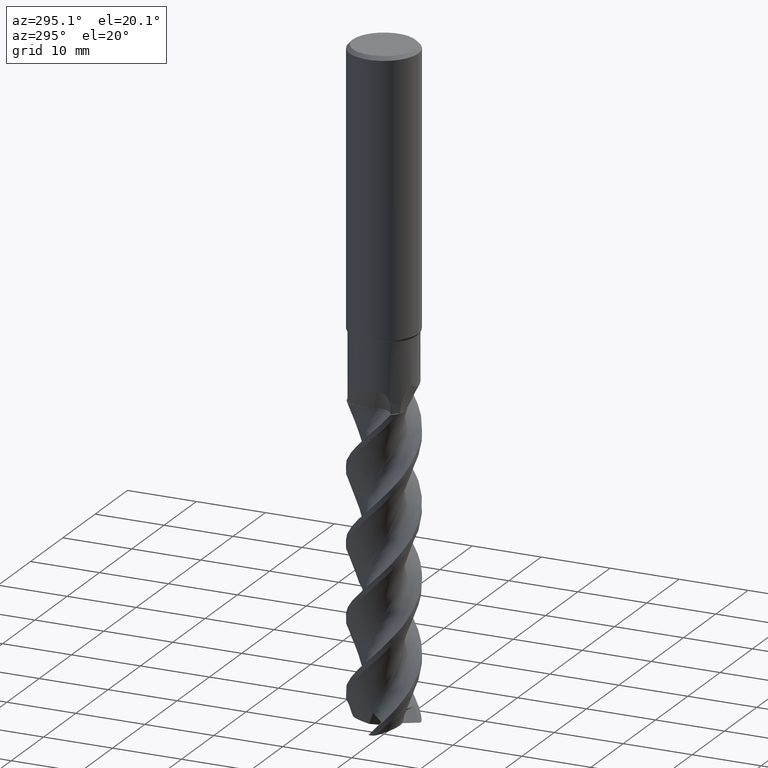
[diagram: clean part render]
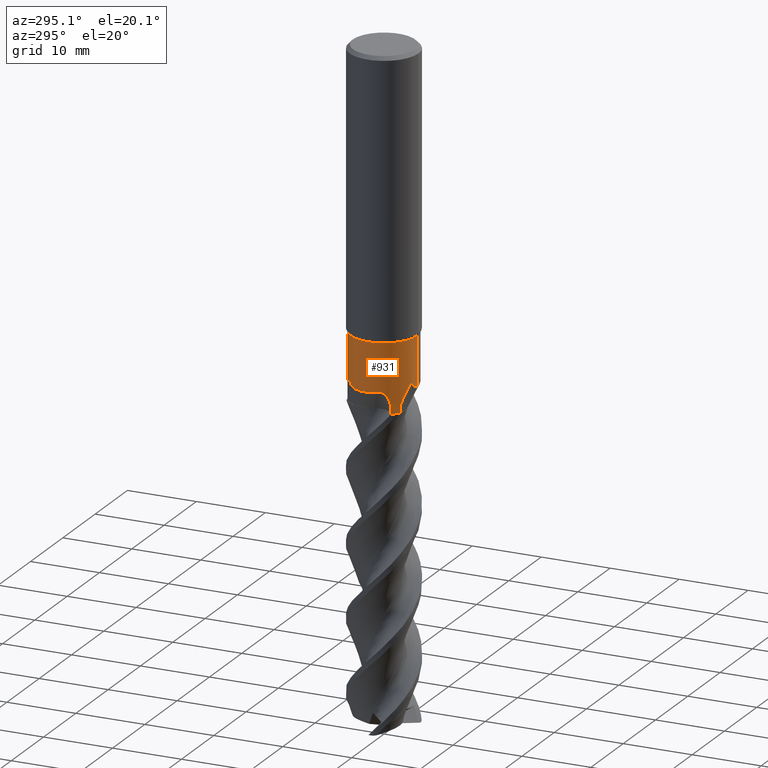
[diagram: same view with one face highlighted and labeled with its STEP entity id]
A machine part, auxiliary view. The second image highlights one B-rep face of the part: STEP entity #931.
In plain terms, the highlighted cylindrical surface (edge-blend (fillet) strip) has radius 4.7999 mm, axis along (-0, -0, 1).
Its self-contained STEP definition (entity closure, byte-faithful):
#503=EDGE_CURVE('',#895,#713,#1454,.T.);
#513=EDGE_CURVE('',#535,#567,#1465,.T.);
#521=VERTEX_POINT('',#1473);
#535=VERTEX_POINT('',#1488);
#547=EDGE_CURVE('',#871,#1129,#1501,.T.);
#567=VERTEX_POINT('',#1523);
#611=EDGE_CURVE('',#1011,#1023,#1572,.T.);
#615=VERTEX_POINT('',#1576);
#651=EDGE_CURVE('',#713,#615,#1617,.T.);
#671=EDGE_CURVE('',#521,#895,#1637,.T.);
#713=VERTEX_POINT('',#1684);
#735=EDGE_CURVE('',#1391,#1011,#1708,.T.);
#763=EDGE_CURVE('',#567,#1391,#1739,.T.);
#871=VERTEX_POINT('',#1855);
#879=VERTEX_POINT('',#1863);
#895=VERTEX_POINT('',#1882);
#931=ADVANCED_FACE('',(#1922),#1923,.T.);
#933=EDGE_CURVE('',#1023,#871,#1925,.T.);
#951=EDGE_CURVE('',#1355,#535,#1944,.T.);
#1007=VERTEX_POINT('',#2006);
#1011=VERTEX_POINT('',#2010);
#1023=VERTEX_POINT('',#2022);
#1075=EDGE_CURVE('',#879,#521,#2078,.T.);
#1121=EDGE_CURVE('',#1187,#1355,#2127,.T.);
#1129=VERTEX_POINT('',#2135);
#1187=VERTEX_POINT('',#2196);
#1209=EDGE_CURVE('',#1187,#1007,#2220,.T.);
#1349=EDGE_CURVE('',#879,#1129,#2379,.T.);
#1355=VERTEX_POINT('',#2386);
#1391=VERTEX_POINT('',#2426);
#1429=EDGE_CURVE('',#615,#1007,#2467,.T.);
#1454=B_SPLINE_CURVE_WITH_KNOTS('',3,(#2491,#2492,#2493,#2494,#2495,#2496,#2497,#2498,#2499,#2500,#2501,#2502,#2503,#2504,#2505,#2506),.UNSPECIFIED.,.F.,.F.,(4,2,2,2,2,2,2,4),(0.0,0.366408586353147,0.668613674259552,1.01258864611867,1.57150034374952,2.56511215688161,3.45385883353074,4.34847679483128),.UNSPECIFIED.);
#1465=B_SPLINE_CURVE_WITH_KNOTS('',3,(#2525,#2526,#2527,#2528,#2529,#2530,#2531,#2532,#2533,#2534,#2535,#2536,#2537,#2538,#2539,#2540),.UNSPECIFIED.,.F.,.F.,(4,2,2,2,2,2,2,4),(0.0,0.366408586294404,0.668613674102897,1.01258864584714,1.57150034329705,2.56511215611628,3.45385883248679,4.3484767935067),.UNSPECIFIED.);
#1473=CARTESIAN_POINT('',(-1.83217859176159,4.43651232505789,-49.1026553486869));
#1488=CARTESIAN_POINT('',(-1.07755989012478,-4.6774335575927,-46.2993889745071));
#1501=B_SPLINE_CURVE_WITH_KNOTS('',3,(#3354,#3355,#3356,#3357),.UNSPECIFIED.,.F.,.F.,(4,4),(0.0,0.824976466473206),.UNSPECIFIED.);
#1523=CARTESIAN_POINT('',(2.49206177107095E-013,-4.79994999999999,-47.0784756930732));
#1572=LINE('',#4410,#4411);
#1576=CARTESIAN_POINT('',(-3.90911617383903,-2.78537802496,-49.1751689168444));
#1617=B_SPLINE_CURVE_WITH_KNOTS('',3,(#4866,#4867,#4868,#4869,#4870,#4871,#4872,#4873,#4874,#4875,#4876,#4877,#4878,#4879),.UNSPECIFIED.,.F.,.F.,(4,2,2,2,2,2,4),(0.0,0.452692046670903,0.846425998887033,1.28490236387265,1.91080408490188,2.61551723669016,3.35633987552536),.UNSPECIFIED.);
#1637=B_SPLINE_CURVE_WITH_KNOTS('',3,(#4921,#4922,#4923,#4924,#4925,#4926,#4927,#4928,#4929,#4930,#4931,#4932,#4933,#4934,#4935,#4936,#4937,#4938,#4939,#4940,#4941,#4942,#4943,#4944,#4945,#4946,#4947,#4948,#4949,#4950,#4951,#4952,#4953,#4954,#4955,#4956,#4957,#4958,#4959,#4960,#4961,#4962,#4963,#4964,#4965,#4966,#4967,#4968),.UNSPECIFIED.,.F.,.F.,(4,2,2,2,2,2,2,2,2,2,2,2,2,2,2,2,2,2,2,2,2,2,2,4),(0.0,0.0273905906306719,0.0747221131462824,0.190667684196604,0.538809423886007,0.590535120926009,0.85265807572117,1.38052392395236,1.42893815920702,1.4494456141497,1.46230987943408,1.47637023328326,1.49568674883845,1.54054469211584,1.69335228724877,1.96365735329308,2.1052409983926,2.14175094527165,2.15916967195829,2.16965269306483,2.1784970461357,2.1884998951516,2.20475986441192,2.25352186594842),.UNSPECIFIED.);
#1684=CARTESIAN_POINT('',(-4.6765662073918,-1.08131795064223,-46.9830052611514));
#1708=CIRCLE('',#6151,4.79995);
#1739=LINE('',#6280,#6281);
#1855=CARTESIAN_POINT('',(-0.45765004183871,4.77808292536924,-49.1751689168405));
#1863=CARTESIAN_POINT('',(-1.70446804769387,4.48712699585053,-50.0));
#1882=CARTESIAN_POINT('',(-3.51199634032689,3.27191101774338,-46.299388974509));
#1922=FACE_OUTER_BOUND('',#8178,.T.);
#1923=CYLINDRICAL_SURFACE('',#8179,4.79995);
#1925=B_SPLINE_CURVE_WITH_KNOTS('',3,(#8182,#8183,#8184,#8185,#8186,#8187,#8188,#8189,#8190,#8191,#8192,#8193,#8194,#8195),.UNSPECIFIED.,.F.,.F.,(4,2,2,2,2,2,4),(0.0,0.452692046670512,0.846425998886289,1.28490236387175,1.91080408490039,2.61551723668776,3.35633987552227),.UNSPECIFIED.);
#1944=B_SPLINE_CURVE_WITH_KNOTS('',3,(#8262,#8263,#8264,#8265,#8266,#8267,#8268,#8269,#8270,#8271,#8272,#8273,#8274,#8275,#8276,#8277,#8278,#8279,#8280,#8281,#8282,#8283,#8284,#8285,#8286,#8287,#8288,#8289,#8290,#8291,#8292,#8293,#8294,#8295,#8296,#8297,#8298,#8299,#8300,#8301,#8302,#8303,#8304,#8305,#8306,#8307,#8308,#8309),.UNSPECIFIED.,.F.,.F.,(4,2,2,2,2,2,2,2,2,2,2,2,2,2,2,2,2,2,2,2,2,2,2,4),(0.0,0.0273905906306139,0.0747221131455983,0.190667684192649,0.538809423868362,0.590535120912064,0.852658075733462,1.38052392398141,1.42893815922867,1.44944561418594,1.46230987946502,1.47637023329293,1.49568674880166,1.54054469195858,1.69335228668013,1.9636573520206,2.10524099674619,2.14175094352969,2.15916967017167,2.1696526912522,2.17849704430116,2.18849989329198,2.20475986251252,2.25352186392507),.UNSPECIFIED.);
#2006=CARTESIAN_POINT('',(-3.89981637743769,-2.79838385943902,-50.0));
#2010=CARTESIAN_POINT('',(0.0,4.79995,-40.0));
#2022=CARTESIAN_POINT('',(5.55370807304914E-012,4.79995000000001,-47.5625681019199));
#2078=B_SPLINE_CURVE_WITH_KNOTS('',3,(#11407,#11408,#11409,#11410),.UNSPECIFIED.,.F.,.F.,(4,4),(0.0,0.988405006261253),.UNSPECIFIED.);
#2127=B_SPLINE_CURVE_WITH_KNOTS('',3,(#11498,#11499,#11500,#11501),.UNSPECIFIED.,.F.,.F.,(4,4),(0.0,0.98840500626273),.UNSPECIFIED.);
#2135=CARTESIAN_POINT('',(-0.473563323095712,4.77653198267515,-49.9999999999988));
#2196=CARTESIAN_POINT('',(-3.03373194456697,-3.71967612716671,-50.0));
#2220=CIRCLE('',#11839,4.79995);
#2379=CIRCLE('',#13803,4.79995);
#2386=CARTESIAN_POINT('',(-2.92604308182201,-3.80496936726454,-49.1026553486843));
#2426=CARTESIAN_POINT('',(5.87804926802972E-016,-4.79995,-40.0));
#2467=B_SPLINE_CURVE_WITH_KNOTS('',3,(#15081,#15082,#15083,#15084),.UNSPECIFIED.,.F.,.F.,(4,4),(0.0,0.82497646646155),.UNSPECIFIED.);
#2491=CARTESIAN_POINT('',(-3.51199634092403,3.27191101710243,-46.2993889733706));
#2492=CARTESIAN_POINT('',(-3.52162050382474,3.2615806552084,-46.4207063643369));
#2493=CARTESIAN_POINT('',(-3.54247993191447,3.23923328536174,-46.5229082507281));
#2494=CARTESIAN_POINT('',(-3.60058903901534,3.17440184441724,-46.6815062372018));
#2495=CARTESIAN_POINT('',(-3.63426340342897,3.13617089026083,-46.7426085835723));
#2496=CARTESIAN_POINT('',(-3.72037832568559,3.03370754504804,-46.8549503869851));
#2497=CARTESIAN_POINT('',(-3.77212523258599,2.96949930943797,-46.9003181884827));
#2498=CARTESIAN_POINT('',(-3.90800522880406,2.79040867926564,-46.9939809232256));
#2499=CARTESIAN_POINT('',(-4.00302493863706,2.6548954385162,-47.0337455650646));
#2500=CARTESIAN_POINT('',(-4.26641382816727,2.22306729979001,-47.1127333541594));
#2501=CARTESIAN_POINT('',(-4.45085073170507,1.85716583683109,-47.1321453635466));
#2502=CARTESIAN_POINT('',(-4.71149584333536,1.00848094292833,-47.130346407102));
#2503=CARTESIAN_POINT('',(-4.78173131133049,0.592185822085158,-47.1139510887911));
#2504=CARTESIAN_POINT('',(-4.81204609831261,-0.249369967026102,-47.0629619963993));
#2505=CARTESIAN_POINT('',(-4.77138282353213,-0.671247829566594,-47.0278983496763));
#2506=CARTESIAN_POINT('',(-4.67656620739179,-1.08131795064223,-46.9830052611514));
#2525=CARTESIAN_POINT('',(-1.07755988927118,-4.67743355778935,-46.2993889733687));
#2526=CARTESIAN_POINT('',(-1.0638014519925,-4.680603146404,-46.4207063643155));
#2527=CARTESIAN_POINT('',(-1.03401834795783,-4.68749425611376,-46.5229082507122));
#2528=CARTESIAN_POINT('',(-0.948818119578294,-4.70540249858361,-46.6815062371993));
#2529=CARTESIAN_POINT('',(-0.898871959861693,-4.71544987654382,-46.7426085835697));
#2530=CARTESIAN_POINT('',(-0.767078638821618,-4.73879591425673,-46.8549503869831));
#2531=CARTESIAN_POINT('',(-0.685599222200647,-4.75150593239473,-46.9003181884808));
#2532=CARTESIAN_POINT('',(-0.462562188782146,-4.77963614589962,-46.9939809232238));
#2533=CARTESIAN_POINT('',(-0.297694424827064,-4.79416900810045,-47.0337455650627));
#2534=CARTESIAN_POINT('',(0.207974158143213,-4.80635640814512,-47.1127333541573));
#2535=CARTESIAN_POINT('',(0.617072572116454,-4.78313272052459,-47.1321453635444));
#2536=CARTESIAN_POINT('',(1.48237780585888,-4.58451556161749,-47.1303464070997));
#2537=CARTESIAN_POINT('',(1.87801768997817,-4.43719370072642,-47.1139510887889));
#2538=CARTESIAN_POINT('',(2.62198377554167,-4.04266918180754,-47.062961996397));
#2539=CARTESIAN_POINT('',(2.96700908440585,-3.79651482157629,-47.0278983496741));
#2540=CARTESIAN_POINT('',(3.27473191852015,-3.50936616276006,-46.9830052611491));
#3354=CARTESIAN_POINT('',(-0.457650041838741,4.77808292536924,-49.1751689168406));
#3355=CARTESIAN_POINT('',(-0.463225591389296,4.77754889309627,-49.4501040248904));
#3356=CARTESIAN_POINT('',(-0.468532300113353,4.77703077719191,-49.7250541731596));
#3357=CARTESIAN_POINT('',(-0.473563323095714,4.77653198267515,-49.9999999999988));
#4410=CARTESIAN_POINT('',(-5.87259881335247E-016,4.79995,-45.0));
#4411=VECTOR('',#15210,1.0);
#4866=CARTESIAN_POINT('',(-4.6765662073961,-1.08131795062367,-46.98300526142));
#4867=CARTESIAN_POINT('',(-4.6443995189161,-1.22043489422256,-46.9342016748914));
#4868=CARTESIAN_POINT('',(-4.60478141196707,-1.3631435153659,-46.9092617922871));
#4869=CARTESIAN_POINT('',(-4.51648504982894,-1.63034313934748,-46.9243757055416));
#4870=CARTESIAN_POINT('',(-4.47197856494293,-1.74789696641555,-46.956048039239));
#4871=CARTESIAN_POINT('',(-4.37443677665261,-1.98026601132963,-47.0711632057699));
#4872=CARTESIAN_POINT('',(-4.32340303478768,-2.08775687552436,-47.157316602341));
#4873=CARTESIAN_POINT('',(-4.2075878407595,-2.3147751952112,-47.4040329171694));
#4874=CARTESIAN_POINT('',(-4.14616588988825,-2.4203661816467,-47.5809406692435));
#4875=CARTESIAN_POINT('',(-4.03901111711573,-2.59571849872794,-47.975769358129));
#4876=CARTESIAN_POINT('',(-3.99406480810017,-2.66270582684778,-48.2034315688544));
#4877=CARTESIAN_POINT('',(-3.9302954958631,-2.75602112258102,-48.6755254605557));
#4878=CARTESIAN_POINT('',(-3.91206367025113,-2.78124138505186,-48.9258441997532));
#4879=CARTESIAN_POINT('',(-3.90911617389706,-2.78537802487858,-49.1751689168449));
#4921=CARTESIAN_POINT('',(-1.83217859176166,4.43651232505786,-49.1026553486867));
#4922=CARTESIAN_POINT('',(-1.82676549495468,4.43874781080843,-49.0956509585328));
#4923=CARTESIAN_POINT('',(-1.82274586046838,4.44039728264662,-49.0874771926252));
#4924=CARTESIAN_POINT('',(-1.81456710086727,4.44374814586333,-49.0641927117608));
#4925=CARTESIAN_POINT('',(-1.8121579871641,4.44472772127686,-49.0475607932452));
#4926=CARTESIAN_POINT('',(-1.80883152739317,4.4460831092353,-48.9932999343296));
#4927=CARTESIAN_POINT('',(-1.81445388998482,4.44379717209753,-48.9489712027313));
#4928=CARTESIAN_POINT('',(-1.84222174729605,4.43240859265573,-48.797429234346));
#4929=CARTESIAN_POINT('',(-1.89297447611822,4.41173578860431,-48.6438143487848));
#4930=CARTESIAN_POINT('',(-1.98211994069453,4.37159930428618,-48.4319041353638));
#4931=CARTESIAN_POINT('',(-1.99392813932057,4.36622772132053,-48.4045545289476));
#4932=CARTESIAN_POINT('',(-2.0666275085732,4.33278633934004,-48.2397706052286));
#4933=CARTESIAN_POINT('',(-2.13436027364875,4.29999632042831,-48.1010098972867));
#4934=CARTESIAN_POINT('',(-2.34077019226858,4.19337725606121,-47.699306406585));
#4935=CARTESIAN_POINT('',(-2.49401515936568,4.10518958684031,-47.4285289104632));
#4936=CARTESIAN_POINT('',(-2.65991508952459,3.99557890320872,-47.1504168035911));
#4937=CARTESIAN_POINT('',(-2.67389159727652,3.98624001061335,-47.127113173526));
#4938=CARTESIAN_POINT('',(-2.69382711278433,3.97276562974236,-47.0940548460375));
#4939=CARTESIAN_POINT('',(-2.69976519044359,3.9687327569411,-47.0842307330808));
#4940=CARTESIAN_POINT('',(-2.70943697307656,3.96213221205127,-47.0682668123439));
#4941=CARTESIAN_POINT('',(-2.71316770424434,3.95957845166085,-47.0621180123072));
#4942=CARTESIAN_POINT('',(-2.72098059678421,3.95421409235241,-47.0492601905567));
#4943=CARTESIAN_POINT('',(-2.72506347762069,3.95140148681992,-47.0425517490836));
#4944=CARTESIAN_POINT('',(-2.73476166137203,3.94469836744022,-47.0266429003967));
#4945=CARTESIAN_POINT('',(-2.74037997733551,3.940797455378,-47.017447227149));
#4946=CARTESIAN_POINT('',(-2.75906125261747,3.92776711162287,-46.9869402300459));
#4947=CARTESIAN_POINT('',(-2.77215318775887,3.91853875859954,-46.9656729892464));
#4948=CARTESIAN_POINT('',(-2.82994157500253,3.87736503125461,-46.8723120818744));
#4949=CARTESIAN_POINT('',(-2.87524927025434,3.84392126404852,-46.8004523587985));
#4950=CARTESIAN_POINT('',(-3.00088436968037,3.7475915142024,-46.6058535228433));
#4951=CARTESIAN_POINT('',(-3.0867595805445,3.67747735240731,-46.4777835544995));
#4952=CARTESIAN_POINT('',(-3.21418350395778,3.56538183768816,-46.3057157820636));
#4953=CARTESIAN_POINT('',(-3.30105628065364,3.48629556504347,-46.1903816442735));
#4954=CARTESIAN_POINT('',(-3.39775867733722,3.39050654004753,-46.1060496944253));
#4955=CARTESIAN_POINT('',(-3.42100571025183,3.36708114764327,-46.0884487943671));
#4956=CARTESIAN_POINT('',(-3.45347866576581,3.33365140773403,-46.0749110764816));
#4957=CARTESIAN_POINT('',(-3.46486717108944,3.32181582426963,-46.0719627371391));
#4958=CARTESIAN_POINT('',(-3.48215530663655,3.30366510360461,-46.0737054667969));
#4959=CARTESIAN_POINT('',(-3.48847116916138,3.29699263501371,-46.0758245146763));
#4960=CARTESIAN_POINT('',(-3.49916178559109,3.28564114239538,-46.0835528081652));
#4961=CARTESIAN_POINT('',(-3.5033911652977,3.28112757183097,-46.0883515270025));
#4962=CARTESIAN_POINT('',(-3.51106226619039,3.27291877713687,-46.1010716590273));
#4963=CARTESIAN_POINT('',(-3.51411227023056,3.26964008282949,-46.1089608909129));
#4964=CARTESIAN_POINT('',(-3.52012414637058,3.26316960928897,-46.1308995410603));
#4965=CARTESIAN_POINT('',(-3.5219451377653,3.26119974756889,-46.146113117437));
#4966=CARTESIAN_POINT('',(-3.5250946526601,3.25779676831671,-46.204448621396));
#4967=CARTESIAN_POINT('',(-3.51891033293073,3.26448969222748,-46.2567631826974));
#4968=CARTESIAN_POINT('',(-3.51199634032683,3.27191101774344,-46.299388974509));
#6151=AXIS2_PLACEMENT_3D('',#15341,#15342,#15343);
#6280=CARTESIAN_POINT('',(5.88349972270697E-016,-4.79995,-45.0));
#6281=VECTOR('',#15379,1.0);
#8178=EDGE_LOOP('',(#15554,#15555,#15556,#15557,#15558,#15559,#15560,#15561,#15562,#15563,#15564,#15565,#15566,#15567,#15568));
#8179=AXIS2_PLACEMENT_3D('',#15569,#15570,#15571);
#8182=CARTESIAN_POINT('',(1.40183428888989,4.59068411339667,-46.9830052614163));
#8183=CARTESIAN_POINT('',(1.26527213739653,4.63238541581679,-46.9342016748878));
#8184=CARTESIAN_POINT('',(1.12187379267276,4.66942943932078,-46.9092617922834));
#8185=CARTESIAN_POINT('',(0.846323949353884,4.72656235863823,-46.9243757055379));
#8186=CARTESIAN_POINT('',(0.722266106357804,4.74679552562783,-46.9560480392353));
#8187=CARTESIAN_POINT('',(0.472257716264012,4.77850638149488,-47.0711632057662));
#8188=CARTESIAN_POINT('',(0.353651026264184,4.78805529668703,-47.1573166023373));
#8189=CARTESIAN_POINT('',(0.0991397972768095,4.80126555635782,-47.4040329171657));
#8190=CARTESIAN_POINT('',(-0.0230156548225953,4.80086807977109,-47.5809406692397));
#8191=CARTESIAN_POINT('',(-0.228452602413729,4.79574548295396,-47.9757693581252));
#8192=CARTESIAN_POINT('',(-0.308938484804929,4.7903145016001,-48.2034315688507));
#8193=CARTESIAN_POINT('',(-0.42163655759007,4.78174630508755,-48.6755254605518));
#8194=CARTESIAN_POINT('',(-0.452593858385933,4.7785672121856,-48.9258441997493));
#8195=CARTESIAN_POINT('',(-0.457650041739211,4.77808292537878,-49.175168916841));
#8262=CARTESIAN_POINT('',(-2.92604308182199,-3.80496936726457,-49.1026553486843));
#8263=CARTESIAN_POINT('',(-2.93068561767525,-3.80139923079187,-49.0956509585304));
#8264=CARTESIAN_POINT('',(-2.9341239194331,-3.7987428611319,-49.0874771926228));
#8265=CARTESIAN_POINT('',(-2.94111523190395,-3.79333527915425,-49.0641927117585));
#8266=CARTESIAN_POINT('',(-2.94316812594859,-3.79173871319346,-49.047560793243));
#8267=CARTESIAN_POINT('',(-2.94600515623806,-3.78953560850639,-48.9932999343273));
#8268=CARTESIAN_POINT('',(-2.94121429530957,-3.79326174877107,-48.9489712027294));
#8269=CARTESIAN_POINT('',(-2.91746756754429,-3.8116151288904,-48.7974292343439));
#8270=CARTESIAN_POINT('',(-2.87418802965726,-3.84523187933603,-48.6438143487827));
#8271=CARTESIAN_POINT('',(-2.7948560823298,-3.90236587413309,-48.4319041353585));
#8272=CARTESIAN_POINT('',(-2.78430005570866,-3.90990628263428,-48.404554528939));
#8273=CARTESIAN_POINT('',(-2.71898928474673,-3.95614509225787,-48.2397706052136));
#8274=CARTESIAN_POINT('',(-2.65672591283748,-3.99840837802811,-48.1010098972653));
#8275=CARTESIAN_POINT('',(-2.46118613525703,-4.12385507896216,-47.6993064065659));
#8276=CARTESIAN_POINT('',(-2.30819088986657,-4.2124752788572,-47.4285289104521));
#8277=CARTESIAN_POINT('',(-2.1303152882436,-4.30134349104121,-47.1504168035921));
#8278=CARTESIAN_POINT('',(-2.11523931613592,-4.30877805551338,-47.1271131735254));
#8279=CARTESIAN_POINT('',(-2.0936024022406,-4.31930552794852,-47.0940548460264));
#8280=CARTESIAN_POINT('',(-2.0871407931178,-4.32243161764898,-47.0842307330744));
#8281=CARTESIAN_POINT('',(-2.07658866225729,-4.32750735465959,-47.0682668123517));
#8282=CARTESIAN_POINT('',(-2.07251167529669,-4.32946138243205,-47.0621180123097));
#8283=CARTESIAN_POINT('',(-2.06395955758838,-4.33354536619547,-47.0492601905558));
#8284=CARTESIAN_POINT('',(-2.05948232932756,-4.33567494195453,-47.0425517490818));
#8285=CARTESIAN_POINT('',(-2.0488281657885,-4.34072225576199,-47.026642900401));
#8286=CARTESIAN_POINT('',(-2.04264071886048,-4.34363740408294,-47.0174472271495));
#8287=CARTESIAN_POINT('',(-2.02201547250336,-4.35330069117658,-46.9869402300402));
#8288=CARTESIAN_POINT('',(-2.00747751677939,-4.36002446308202,-46.9656729892408));
#8289=CARTESIAN_POINT('',(-1.94292582930867,-4.38948381080612,-46.8723120818694));
#8290=CARTESIAN_POINT('',(-1.89130882968418,-4.41199954227798,-46.8004523587937));
#8291=CARTESIAN_POINT('',(-1.74506726945641,-4.47263785506802,-46.6058535228283));
#8292=CARTESIAN_POINT('',(-1.64140901873455,-4.51195088833767,-46.4777835544728));
#8293=CARTESIAN_POINT('',(-1.48061949361772,-4.56625548570713,-46.3057157820279));
#8294=CARTESIAN_POINT('',(-1.36869238407979,-4.60194638089625,-46.1903816442542));
#8295=CARTESIAN_POINT('',(-1.23738545670106,-4.63779860052914,-46.1060496944184));
#8296=CARTESIAN_POINT('',(-1.20547495533094,-4.64621842539285,-46.0884487943627));
#8297=CARTESIAN_POINT('',(-1.16028747357379,-4.65762595984847,-46.074911076479));
#8298=CARTESIAN_POINT('',(-1.14434330496371,-4.66157090303755,-46.071962737137));
#8299=CARTESIAN_POINT('',(-1.11998025199736,-4.66746750727286,-46.0737054667953));
#8300=CARTESIAN_POINT('',(-1.11104379342998,-4.66960097037054,-46.075824514675));
#8301=CARTESIAN_POINT('',(-1.09586780423759,-4.67318356947143,-46.0835528081639));
#8302=CARTESIAN_POINT('',(-1.08984424761394,-4.67458953445735,-46.0883515270009));
#8303=CARTESIAN_POINT('',(-1.07889967242773,-4.67712850535844,-46.1010716590266));
#8304=CARTESIAN_POINT('',(-1.07453523784625,-4.67813053918514,-46.1089608909128));
#8305=CARTESIAN_POINT('',(-1.06592570531601,-4.68010173987646,-46.1308995410603));
#8306=CARTESIAN_POINT('',(-1.0633092593272,-4.68069383382435,-46.1461131174371));
#8307=CARTESIAN_POINT('',(-1.05878743539967,-4.68171990410657,-46.2044486213965));
#8308=CARTESIAN_POINT('',(-1.06767583739659,-4.67971058807119,-46.2567631826967));
#8309=CARTESIAN_POINT('',(-1.07755989012482,-4.67743355759268,-46.2993889745071));
#11407=CARTESIAN_POINT('',(-1.70446804769376,4.48712699585058,-50.0000000000005));
#11408=CARTESIAN_POINT('',(-1.77259137663375,4.46124985049942,-49.6786917843457));
#11409=CARTESIAN_POINT('',(-1.82399243065464,4.43989302323299,-49.3659461192573));
#11410=CARTESIAN_POINT('',(-1.83217859095401,4.4365123253914,-49.1026553498948));
#11498=CARTESIAN_POINT('',(-3.03373194456675,-3.71967612716689,-49.9999999999989));
#11499=CARTESIAN_POINT('',(-2.97726001484512,-3.7657340879438,-49.6786917843435));
#11500=CARTESIAN_POINT('',(-2.93306393287765,-3.799570292874,-49.365946119255));
#11501=CARTESIAN_POINT('',(-2.92604308251461,-3.80496936673193,-49.1026553498922));
#11839=AXIS2_PLACEMENT_3D('',#15794,#15795,#15796);
#13803=AXIS2_PLACEMENT_3D('',#16064,#16065,#16066);
#15081=CARTESIAN_POINT('',(-3.90911617383903,-2.78537802496001,-49.1751689168444));
#15082=CARTESIAN_POINT('',(-3.90586591354897,-2.78993957637429,-49.4501040248904));
#15083=CARTESIAN_POINT('',(-3.90276385765165,-2.79427626298765,-49.7250541731605));
#15084=CARTESIAN_POINT('',(-3.89981637743768,-2.79838385943902,-50.0000000000005));
#15210=DIRECTION('',(0.0,0.0,-1.0));
#15341=CARTESIAN_POINT('',(0.0,0.0,-40.0));
#15342=DIRECTION('',(0.0,0.0,-1.0));
#15343=DIRECTION('',(0.0,1.0,0.0));
#15379=DIRECTION('',(-0.0,-0.0,1.0));
#15554=ORIENTED_EDGE('',*,*,#611,.T.);
#15555=ORIENTED_EDGE('',*,*,#933,.T.);
#15556=ORIENTED_EDGE('',*,*,#547,.T.);
#15557=ORIENTED_EDGE('',*,*,#1349,.F.);
#15558=ORIENTED_EDGE('',*,*,#1075,.T.);
#15559=ORIENTED_EDGE('',*,*,#671,.T.);
#15560=ORIENTED_EDGE('',*,*,#503,.T.);
#15561=ORIENTED_EDGE('',*,*,#651,.T.);
#15562=ORIENTED_EDGE('',*,*,#1429,.T.);
#15563=ORIENTED_EDGE('',*,*,#1209,.F.);
#15564=ORIENTED_EDGE('',*,*,#1121,.T.);
#15565=ORIENTED_EDGE('',*,*,#951,.T.);
#15566=ORIENTED_EDGE('',*,*,#513,.T.);
#15567=ORIENTED_EDGE('',*,*,#763,.T.);
#15568=ORIENTED_EDGE('',*,*,#735,.T.);
#15569=CARTESIAN_POINT('',(0.0,0.0,-45.0));
#15570=DIRECTION('',(-0.0,-0.0,1.0));
#15571=DIRECTION('',(0.0,1.0,0.0));
#15794=CARTESIAN_POINT('',(0.0,0.0,-50.0));
#15795=DIRECTION('',(0.0,0.0,-1.0));
#15796=DIRECTION('',(0.0,1.0,0.0));
#16064=CARTESIAN_POINT('',(0.0,0.0,-50.0));
#16065=DIRECTION('',(0.0,0.0,-1.0));
#16066=DIRECTION('',(0.0,1.0,0.0));